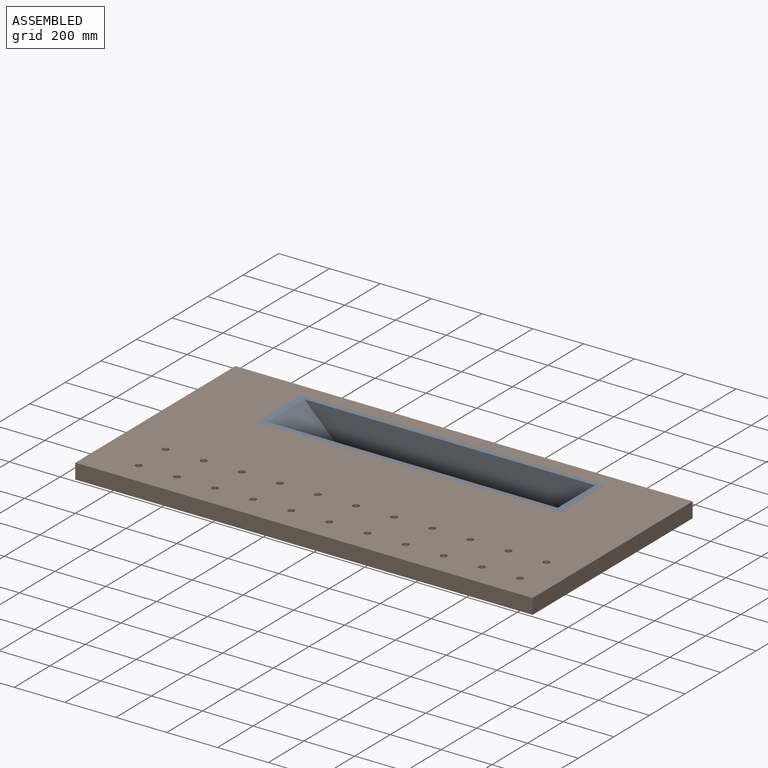
[diagram: assembled view]
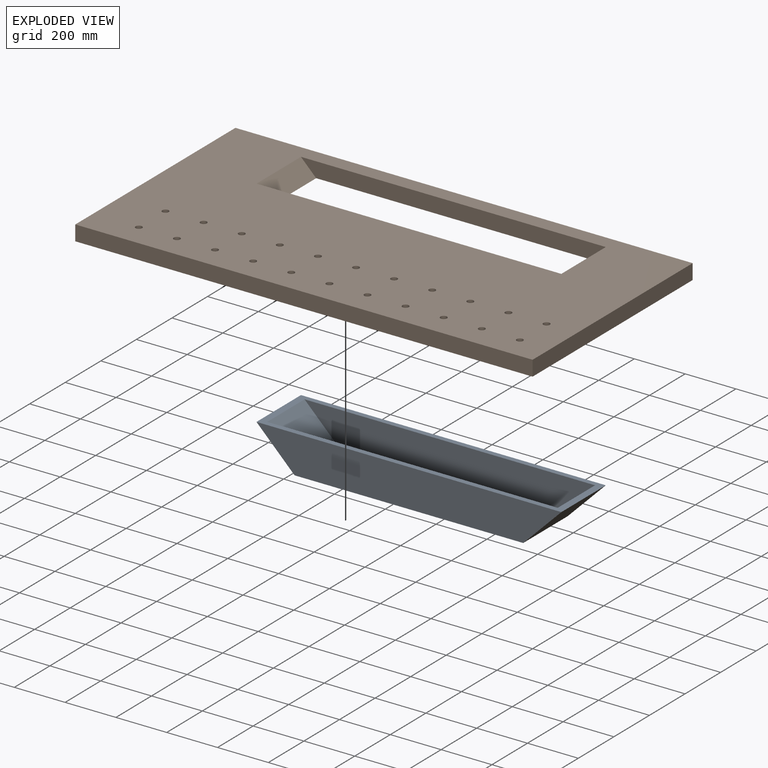
[diagram: exploded view]
GUIDED TOUR — MATED ASSEMBLY WITH SUBASSEMBLIES (Onshape document 4d3d17a468d126c193f9c319, AutoMate assembly 4d3d17a468d126c193f9c319_b5b2b6fa10c2483a81ee75f6_35c6d089d1beaa1d6626289a_default)

This assembly has 6 component occurrences arranged in 2 top-level units: 1 individual components plus 1 subassembly (S0). The tour has two levels: first the top level, where each subassembly is treated as one rigid unit; then each subassembly is toured internally in its own section (nesting deeper than one subassembly level is flattened into its subassembly's section).

Components are labeled P0..P5 across the whole record; subassembly units are labeled S0..S0. A mate is a constraint between two units; its type names the relative motion it leaves free:
  FASTENED — locks the two components together rigidly (no relative motion),
  PLANAR — leaves sliding in the plane through the listed point (normal = the listed direction) and rotation about that normal free.
Axis/direction vectors are unit vectors and 'through' points are millimeter coordinates, both in the assembly's world frame.

TOP-LEVEL MATES (between units; each subassembly's internal mates are listed in its own section)
  1. FASTENED "Fastened 6": S0 <-> P4, direction (0.000, 0.000, 1.000) through (300.00, 590.00, 60.00) mm
  2. PLANAR "Planar 1": P4 <-> S0, direction (0.000, 0.000, 1.000) through (899.74, 391.60, 60.00) mm

TOP-LEVEL ASSEMBLY ORDER
  1. S0 — the base component [order verified]
  2. P4 [order verified]
Order-tag legend:
  [order verified] — this step's position reverses a verified removal order: the component was checked to insert without passing through the ones already placed.

Of the 6 component occurrences, 2 carry the full construction recipe — the FeatureScript program that regenerates the part's solid from scratch; the rest are supplied as boundary geometry only. Each toured unit is shown spotlighted twice — assembled, then exploded with a leader line back to its socket (green = recipe-attached component, orange = geometry-only, blue = subassembly unit; the rest desaturated gray).
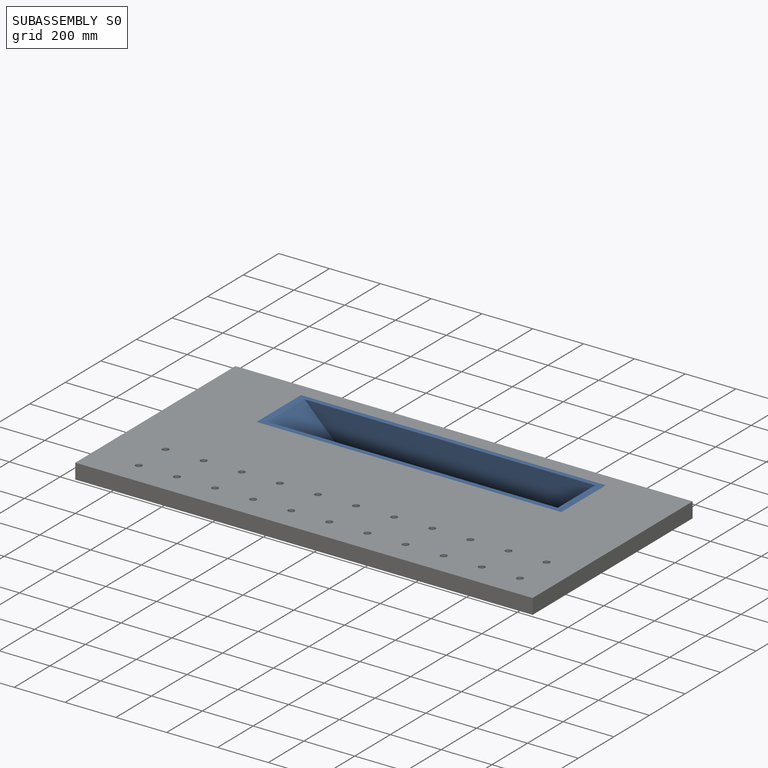
[diagram: subassembly S0 — assembled]
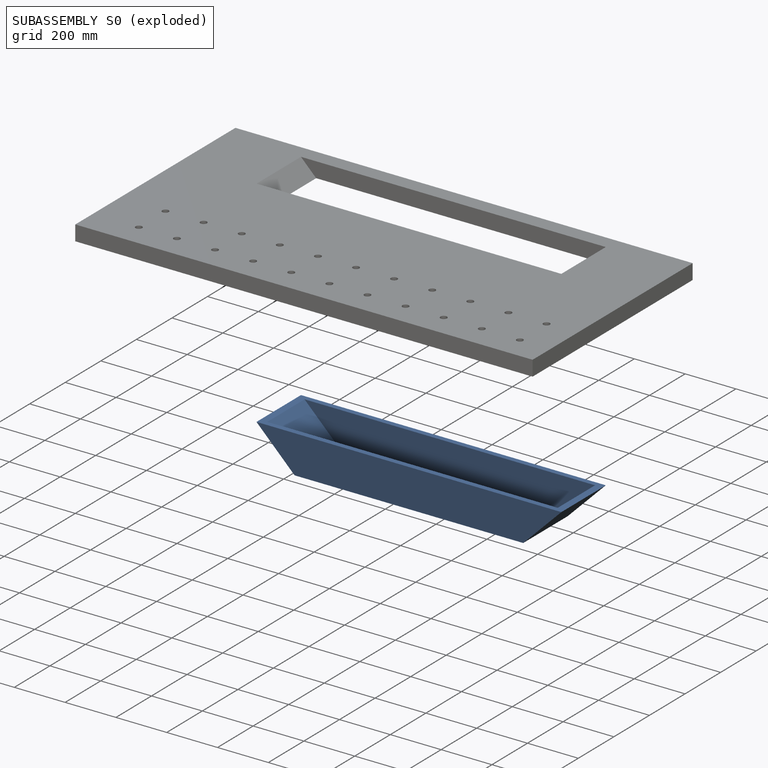
[diagram: subassembly S0 — exploded]
SUBASSEMBLY S0 — 5 components (P0, P1, P2, P3, P5), of which 2 recipe-attached; toured below.
Held by: FASTENED mate "Fastened 6" to P4; PLANAR mate "Planar 1" to P4.
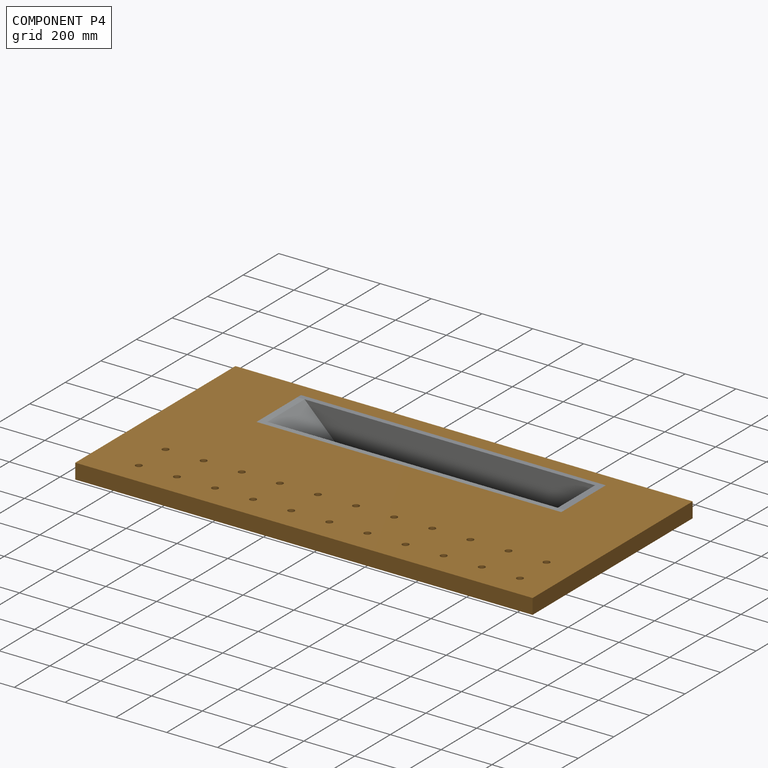
[diagram: component P4 — assembled]
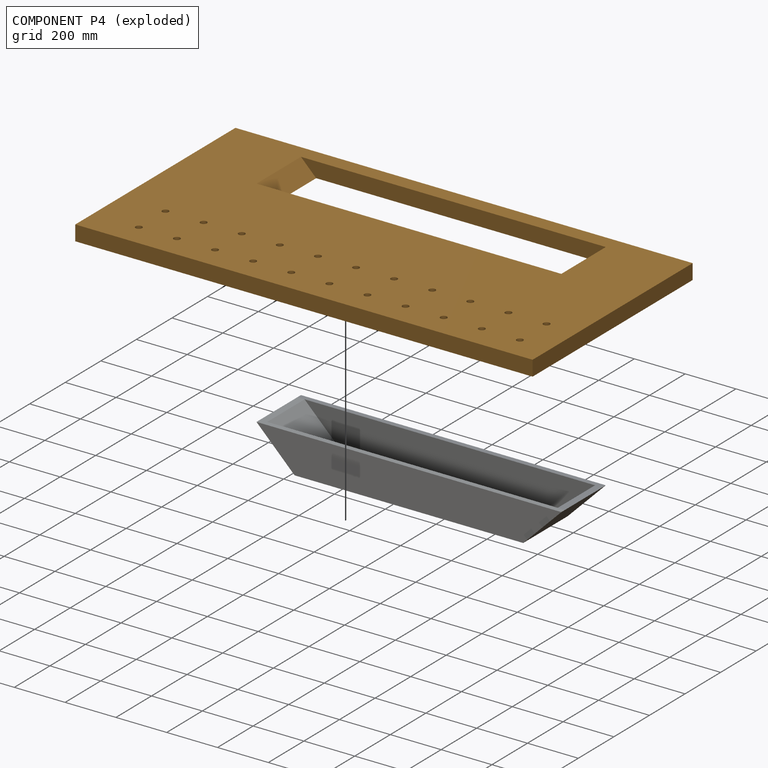
[diagram: component P4 — exploded]
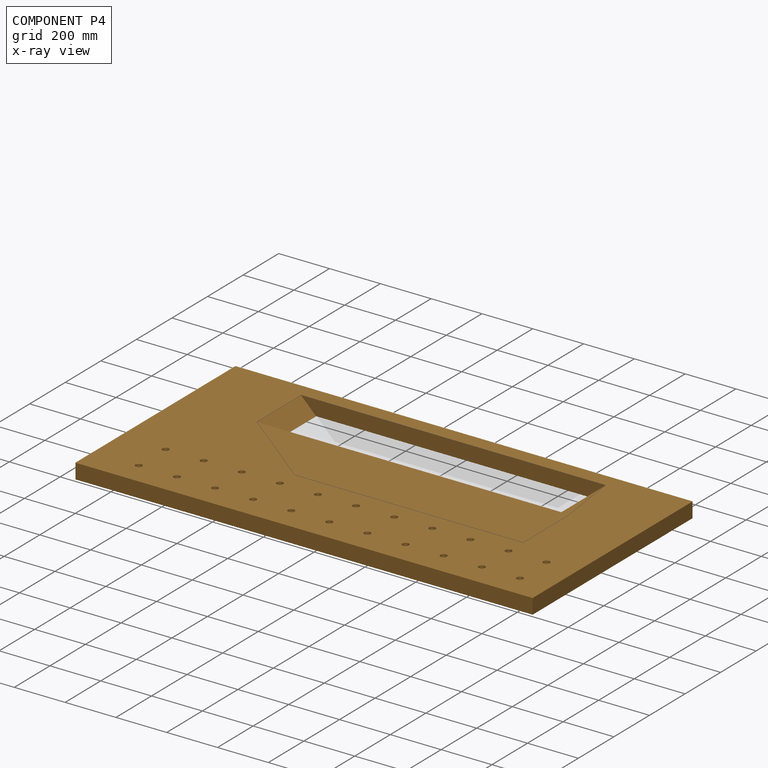
[diagram: component P4 — x-ray view]
COMPONENT P4 — geometry summary (no construction recipe available for this part):
  bounding box: 1800.0 x 900.0 x 60.0 mm
  B-rep topology: 1 solid, 52 faces, 276 edges
  volume: 79071146 mm^3 (81% of its bounding box)
Held by: FASTENED mate "Fastened 6" to P0; PLANAR mate "Planar 1" to P0.
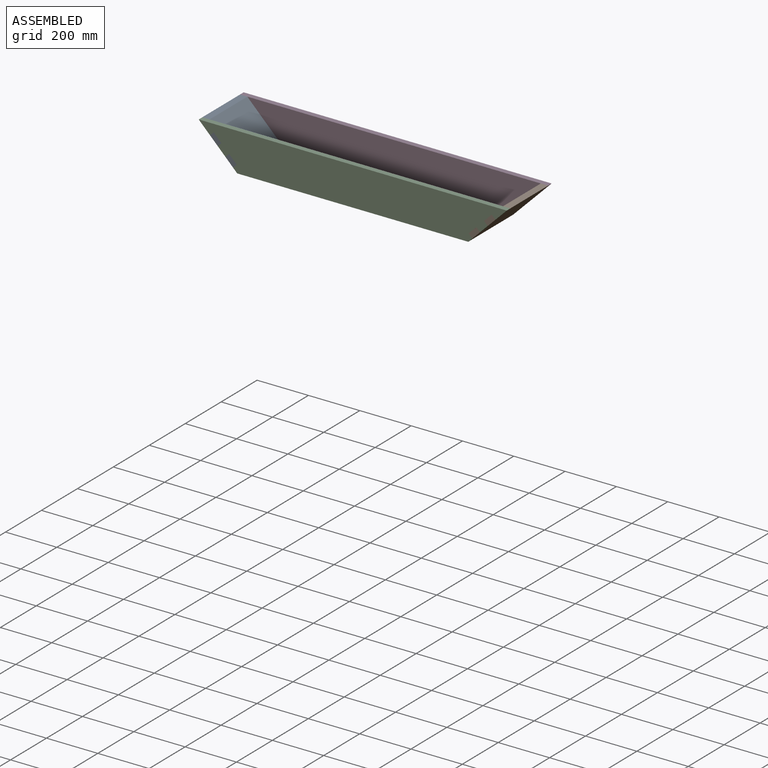
[diagram: subassembly S0 — assembled view]
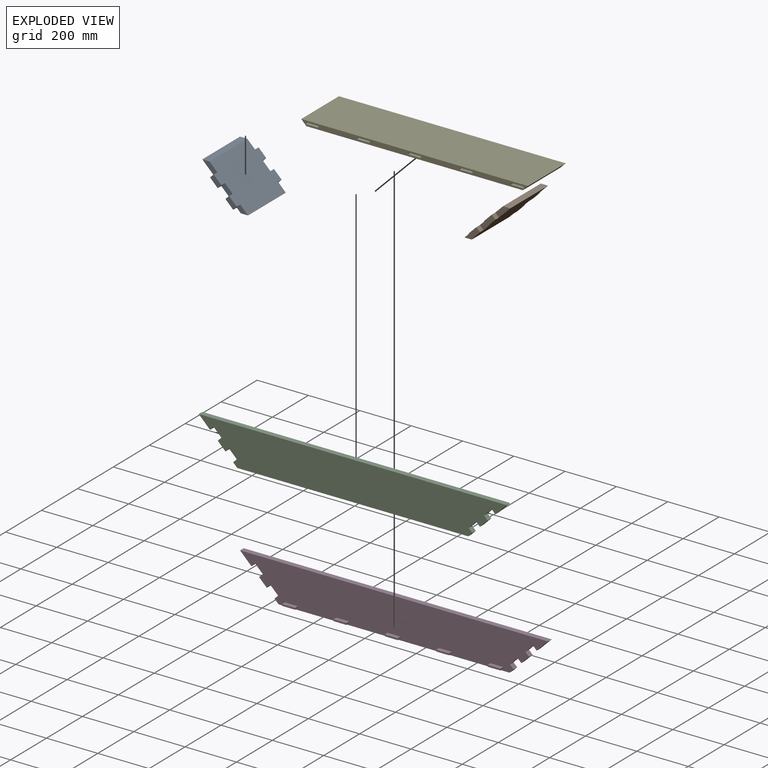
[diagram: subassembly S0 — exploded view]
SUBASSEMBLY S0 TOUR — 5 components, shown here in isolation at its own camera.

INTERNAL MATES
  1. FASTENED "Fastened 3": P0 <-> P2, direction (0.000, 0.000, 1.000) through (300.00, 610.00, 60.00) mm
  2. FASTENED "Fastened 2": P3 <-> P0, direction (0.000, 0.000, 1.000) through (300.00, 820.00, 60.00) mm
  3. FASTENED "Fastened 5": P0 <-> P5, direction (0.707, 0.000, 0.707) through (478.28, 820.00, -90.00) mm
  4. FASTENED "Fastened 4": P3 <-> P1, direction (0.000, 0.000, 1.000) through (1500.00, 820.00, 60.00) mm
  5. FASTENED "Fastened 3": P0 <-> P2, direction (0.000, 0.000, 1.000) through (300.00, 610.00, 60.00) mm
  6. FASTENED "Fastened 2": P3 <-> P0, direction (0.000, 0.000, 1.000) through (300.00, 820.00, 60.00) mm
  7. FASTENED "Fastened 5": P0 <-> P5, direction (0.707, 0.000, 0.707) through (478.28, 820.00, -90.00) mm
  8. FASTENED "Fastened 4": P3 <-> P1, direction (0.000, 0.000, 1.000) through (1500.00, 820.00, 60.00) mm

ASSEMBLY ORDER (within the subassembly)
  1. P1 — the base component [order verified]
  2. P0 [order verified]
  3. P3 [order verified]
  4. P5 [order verified]
  5. P2 [order verified]
(P5 verified with a relaxed clearance tolerance: the source model stores slight part interference there.)
Order-tag legend:
  [order verified] — this step's position reverses a verified removal order: the component was checked to insert without passing through the ones already placed.
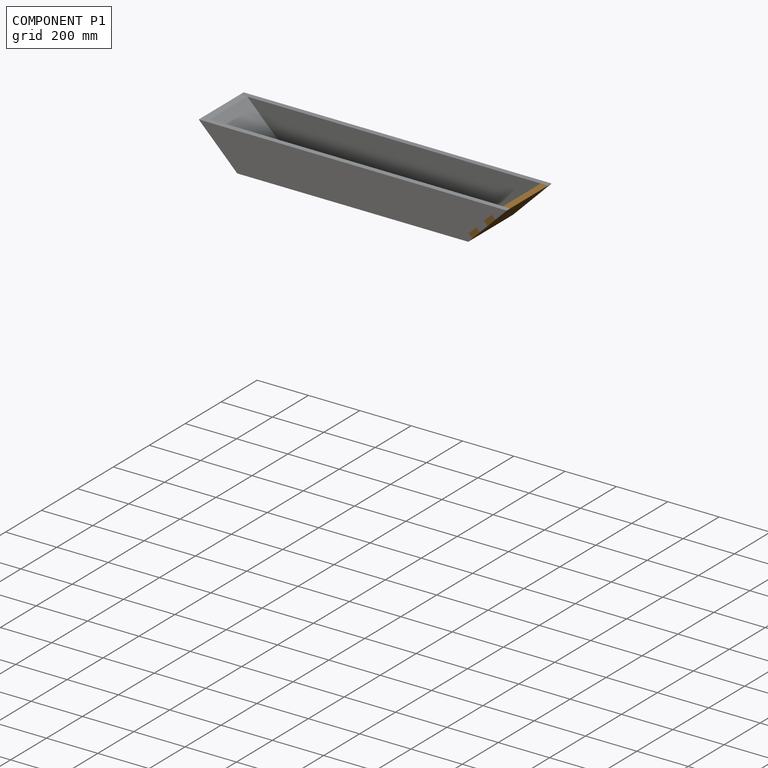
[diagram: component P1 — assembled]
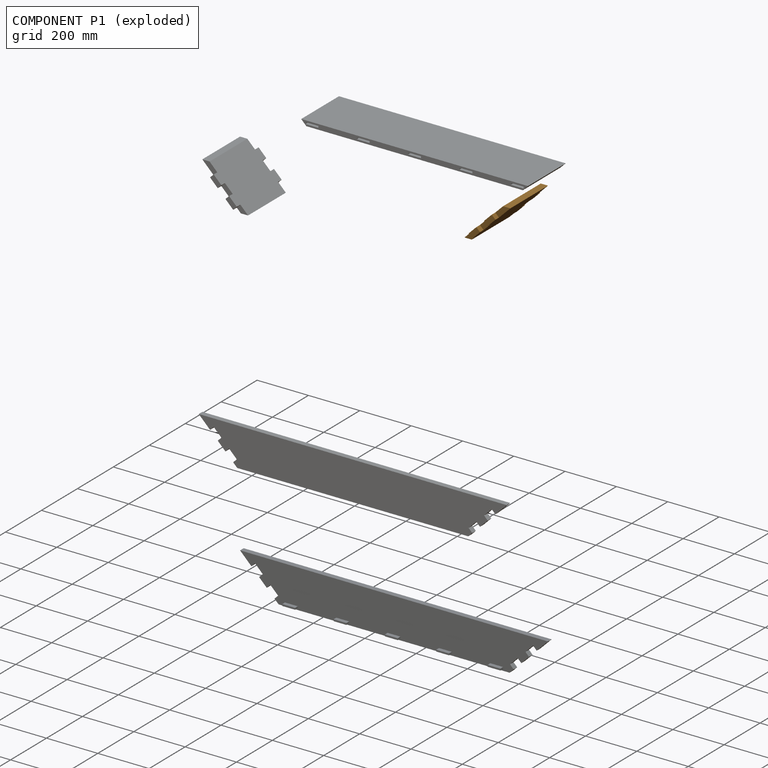
[diagram: component P1 — exploded]
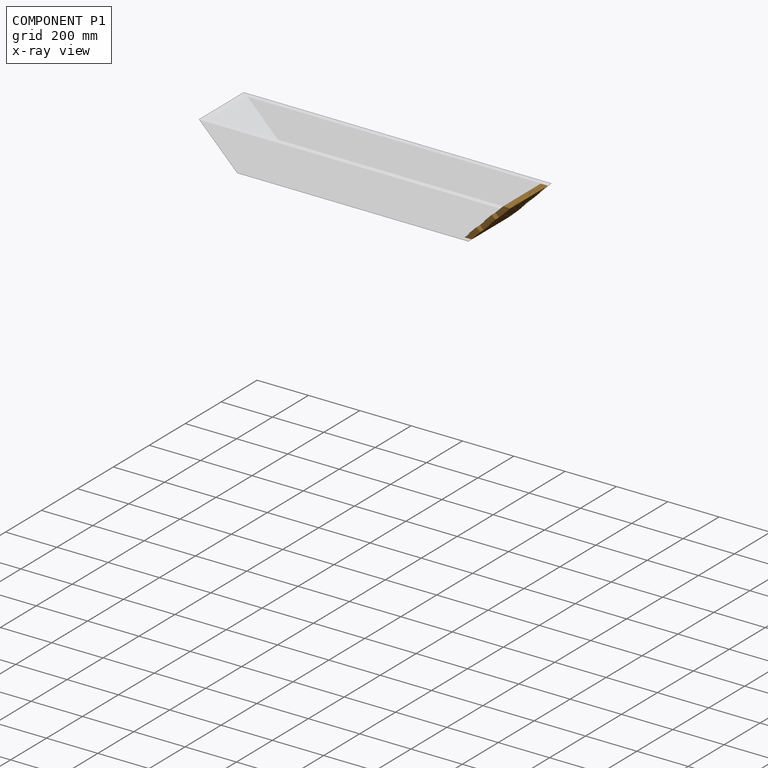
[diagram: component P1 — x-ray view]
COMPONENT P1 — geometry summary (no construction recipe available for this part):
  bounding box: 250.0 x 232.1 x 20.0 mm
  B-rep topology: 1 solid, 22 faces, 120 edges
  volume: 958837 mm^3 (83% of its bounding box)
  symmetry: mirror-symmetric across its y mid-plane
Held by: FASTENED mate "Fastened 4" to P3; FASTENED mate "Fastened 4" to P3.
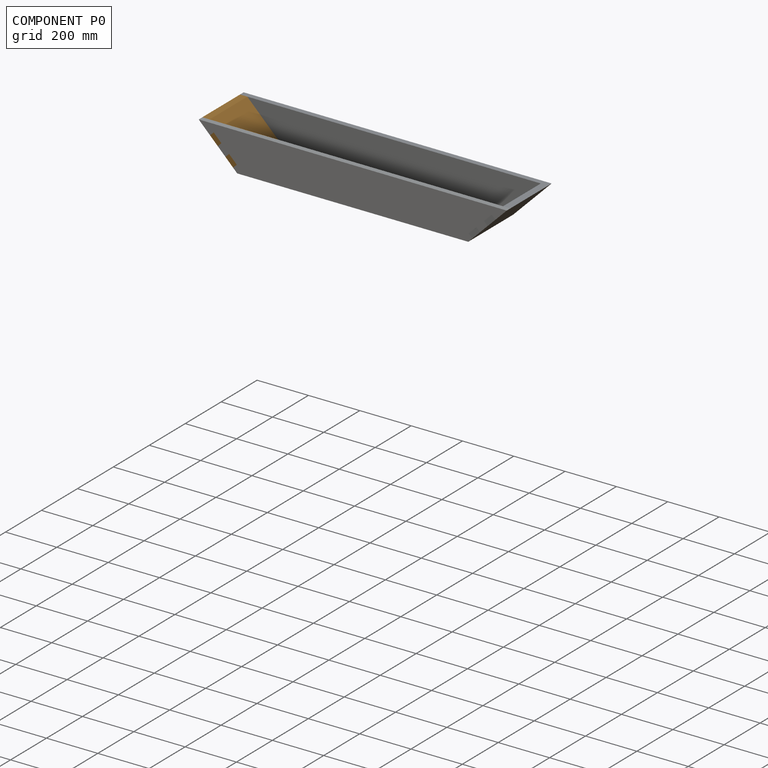
[diagram: component P0 — assembled]
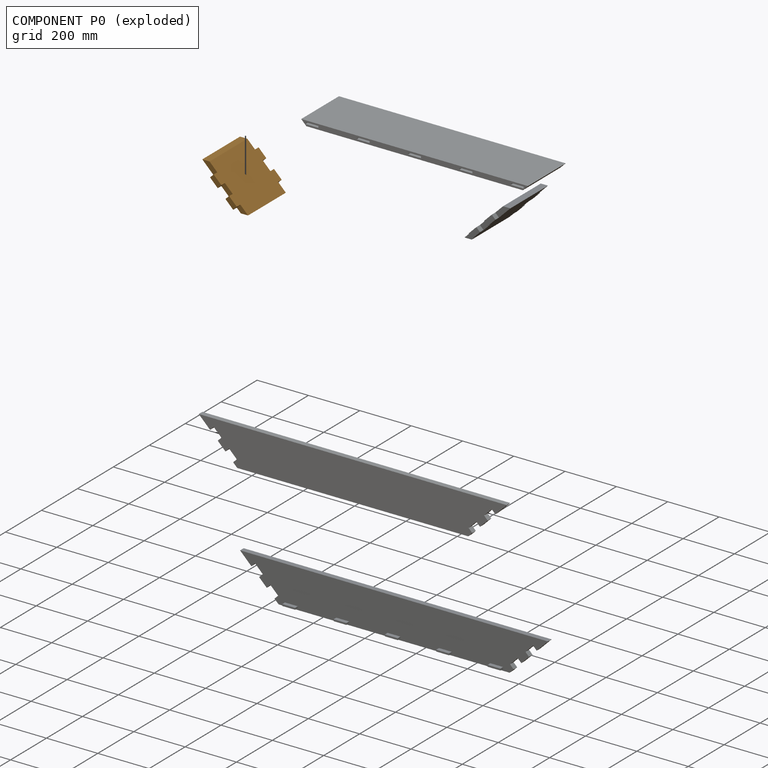
[diagram: component P0 — exploded]
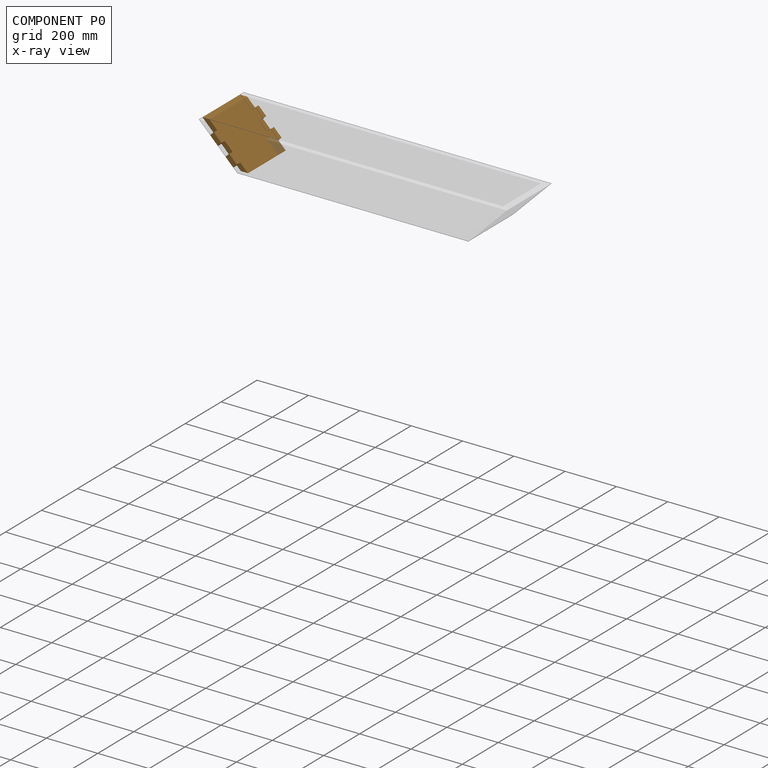
[diagram: component P0 — x-ray view]
COMPONENT P0 — geometry summary (no construction recipe available for this part):
  bounding box: 250.0 x 232.1 x 20.0 mm
  B-rep topology: 1 solid, 22 faces, 120 edges
  volume: 958837 mm^3 (83% of its bounding box)
  symmetry: mirror-symmetric across its y mid-plane
Held by: FASTENED mate "Fastened 3" to P2; FASTENED mate "Fastened 2" to P3; FASTENED mate "Fastened 5" to P5; FASTENED mate "Fastened 3" to P2; FASTENED mate "Fastened 2" to P3; FASTENED mate "Fastened 5" to P5.
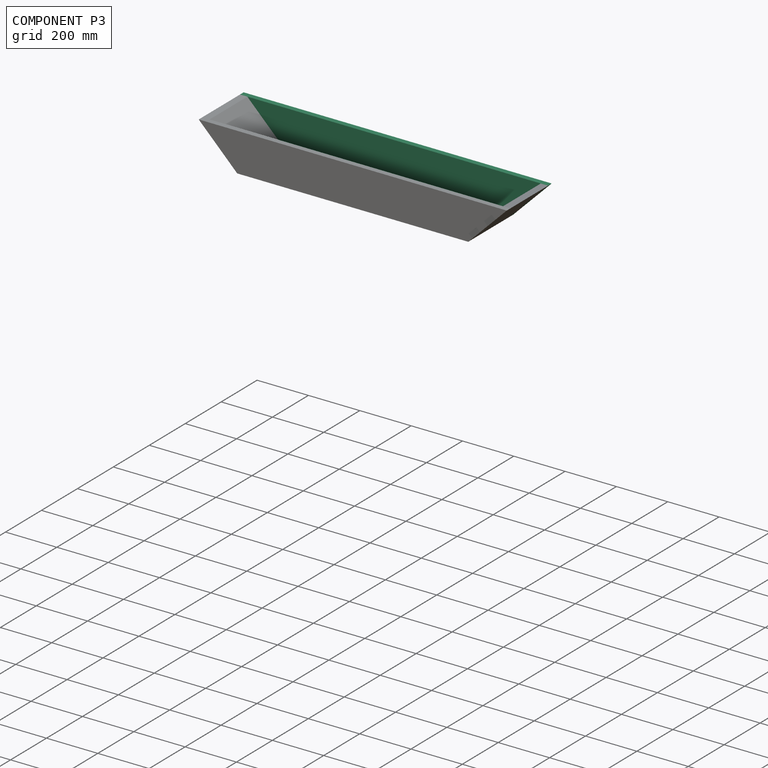
[diagram: component P3 — assembled]
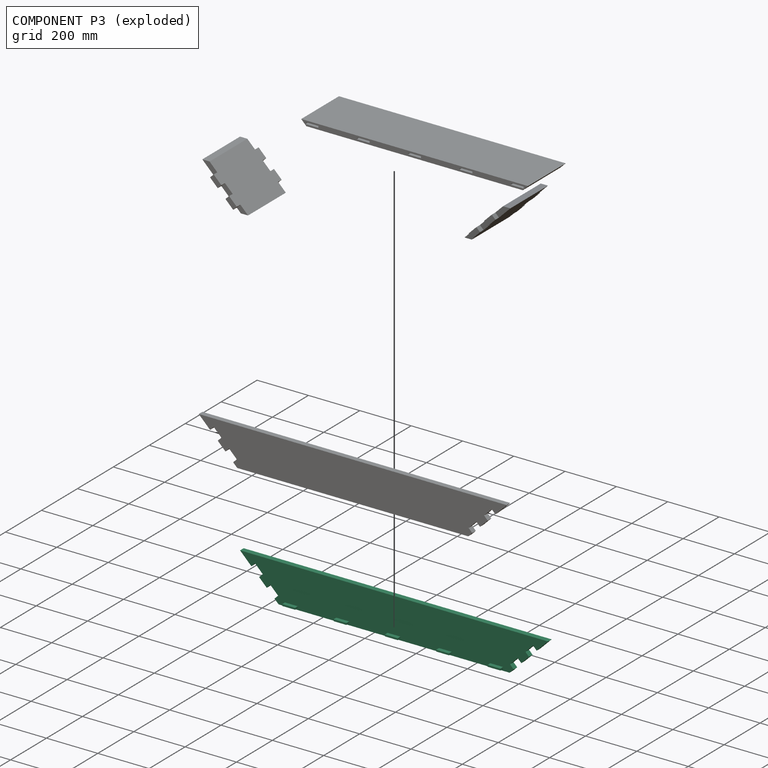
[diagram: component P3 — exploded]
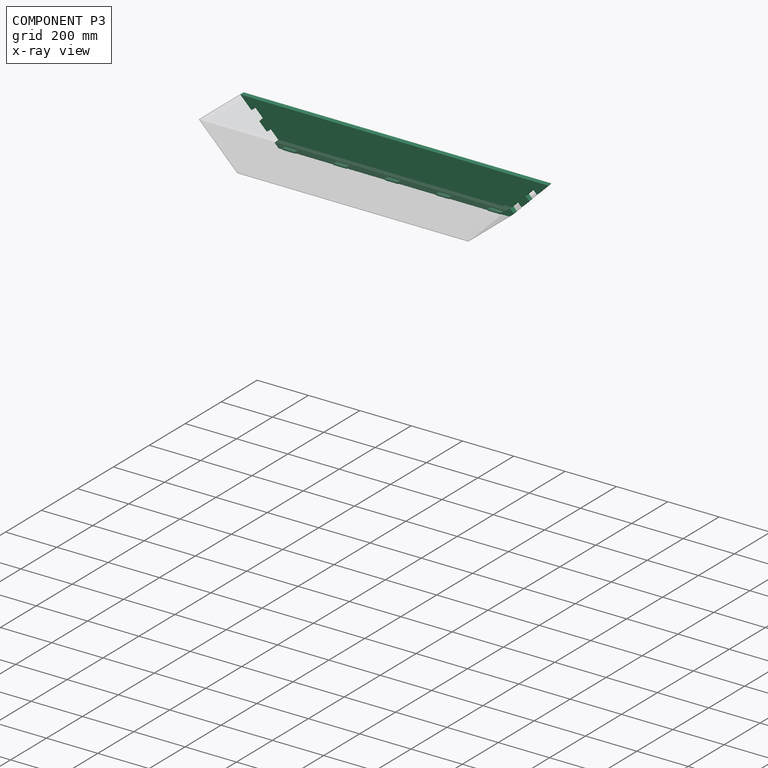
[diagram: component P3 — x-ray view]
COMPONENT P3 — same part as P2 (CADFS 00162149); its construction recipe is shown at P2.
Held by: FASTENED mate "Fastened 2" to P0; FASTENED mate "Fastened 4" to P1; FASTENED mate "Fastened 2" to P0; FASTENED mate "Fastened 4" to P1.
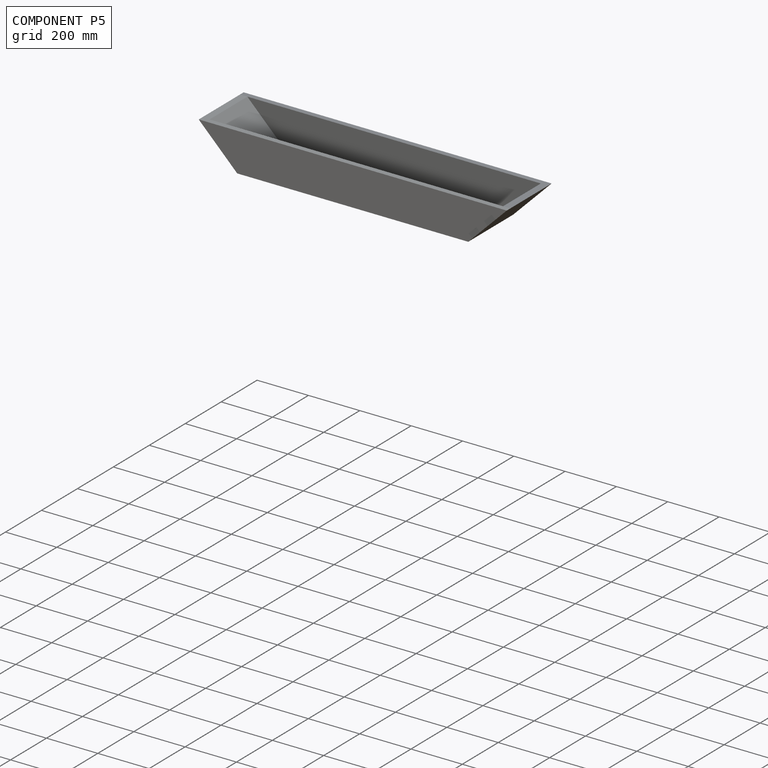
[diagram: component P5 — assembled]
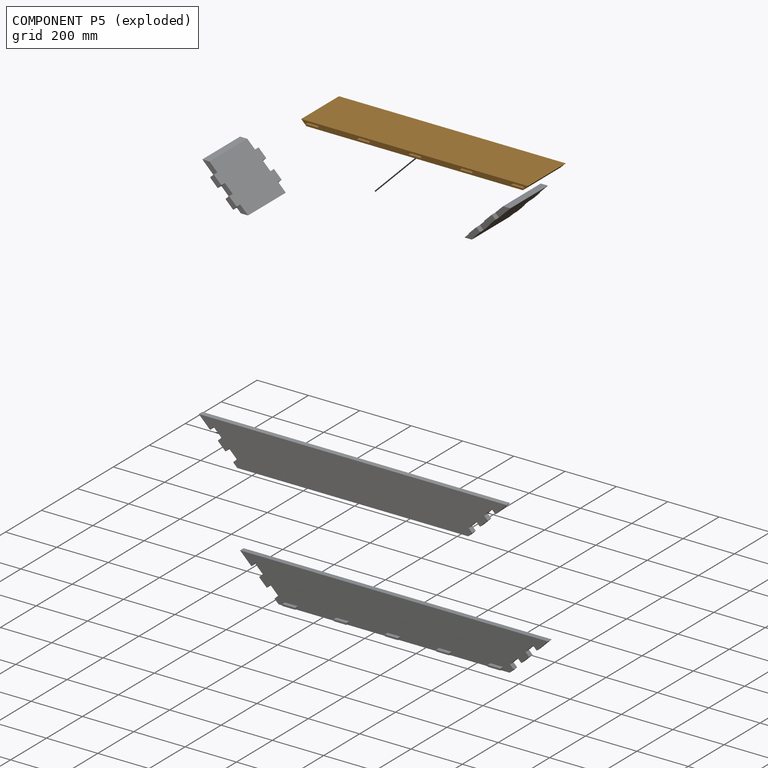
[diagram: component P5 — exploded]
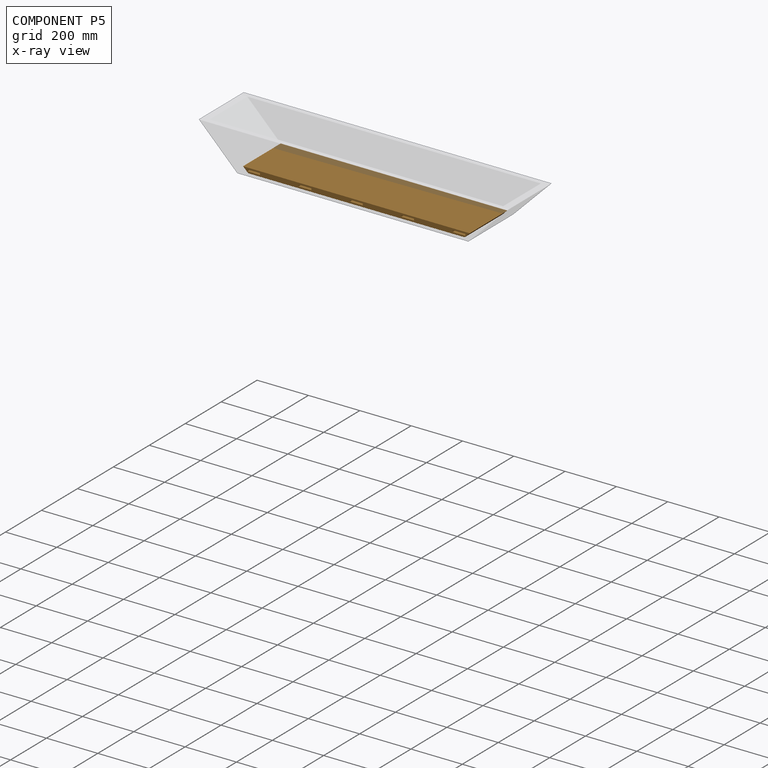
[diagram: component P5 — x-ray view]
COMPONENT P5 — geometry summary (no construction recipe available for this part):
  bounding box: 883.4 x 210.0 x 20.0 mm
  B-rep topology: 1 solid, 56 faces, 264 edges
  volume: 3576410 mm^3 (96% of its bounding box)
  symmetry: 2-fold rotationally symmetric about the z axis; mirror-symmetric across its x mid-plane, y mid-plane
Held by: FASTENED mate "Fastened 5" to P0; FASTENED mate "Fastened 5" to P0.
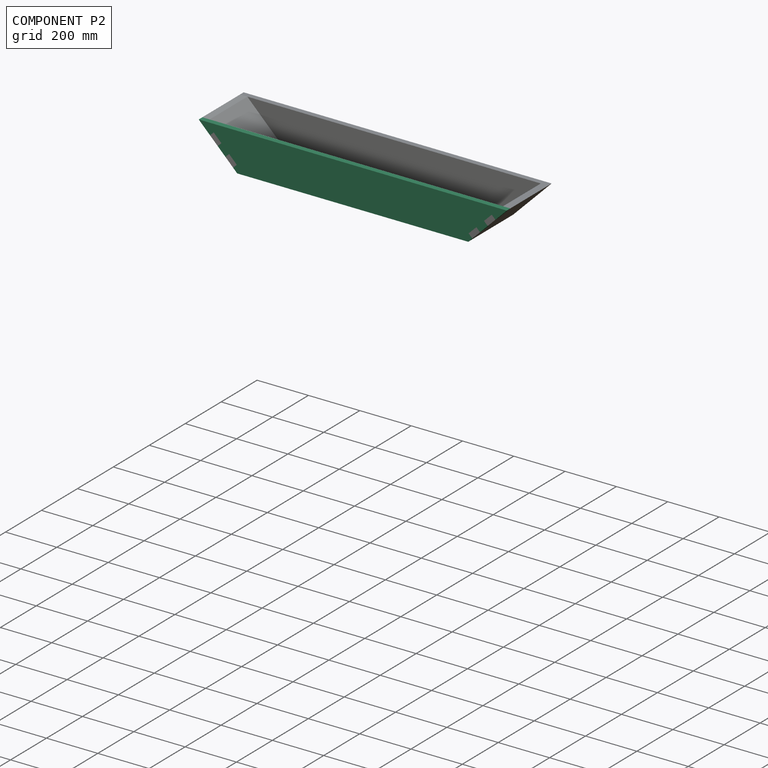
[diagram: component P2 — assembled]
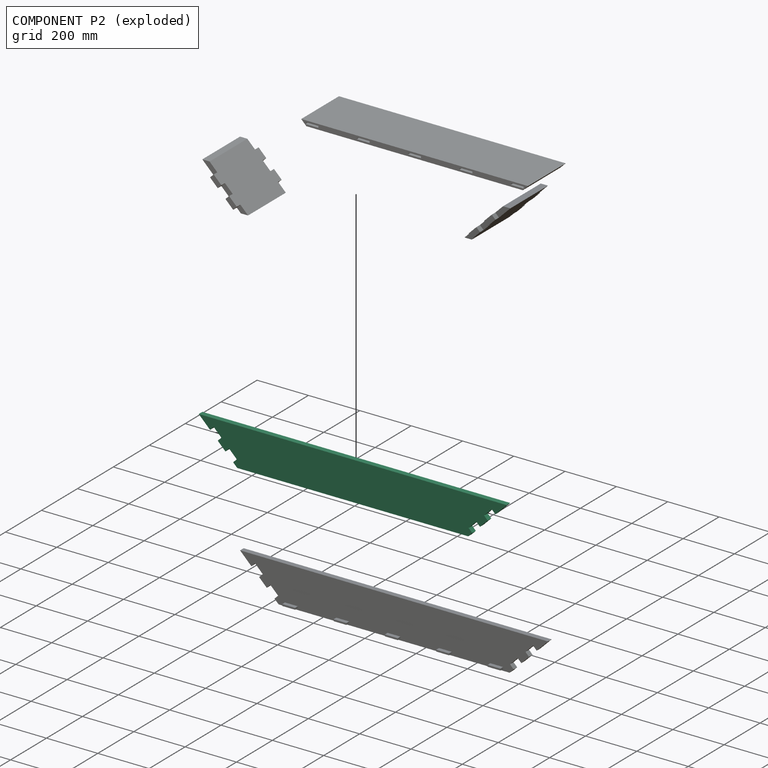
[diagram: component P2 — exploded]
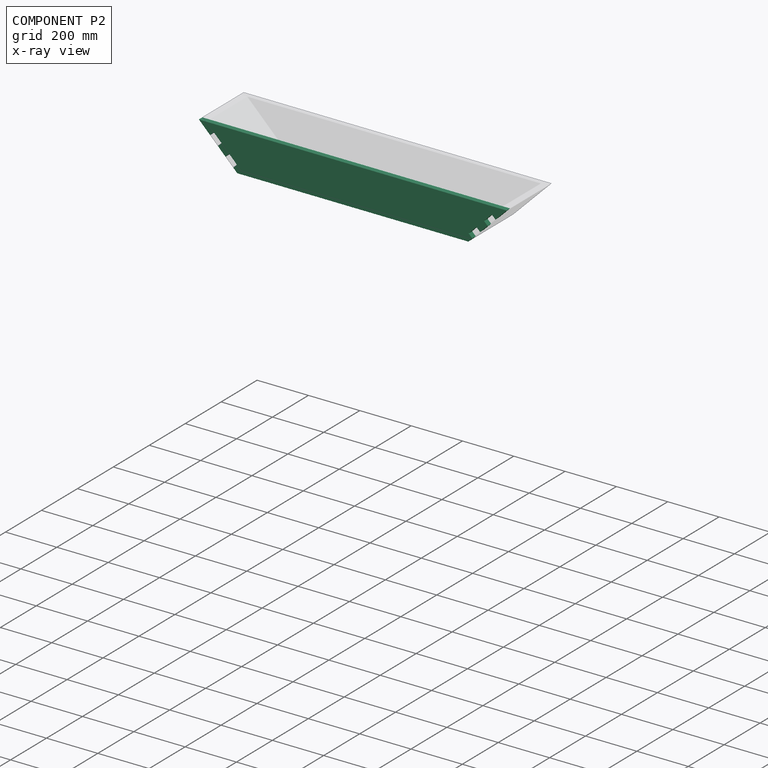
[diagram: component P2 — x-ray view]
COMPONENT P2 — recipe-attached (CADFS 00162149, mesh-verified: the recipe's output STEP matches this component's geometry to below the mesh-comparison resolution (tessellation chordal tolerance ~1.81 mm)).
Held by: FASTENED mate "Fastened 3" to P0; FASTENED mate "Fastened 3" to P0.
Construction recipe (FeatureScript — the CAD program that rebuilds this solid; sketch coordinates are in the units given by the * unit suffixes, e.g. mm):

FeatureScript 1511;
import(path : "onshape/std/geometry.fs", version : "1511.0");
import(path : "onshape/std/common.fs", version : "1511.0");
const mm = millimeter;
const VERTEX = EntityType.VERTEX;
const EDGE = EntityType.EDGE;
const FACE = EntityType.FACE;
const BODY = EntityType.BODY;
function v(x, y){return vector(x, y);}
function OD(order){return orderDisambiguation(order);}
function OSD(set){return originalSetDisambiguation(set);}
function TD(topology){return topologyDisambiguation(topology);}
function TDD(query){return trueDependencyDisambiguation(query);}
function sQuery(a, b, c) {return sketchEntityQuery(a, b, c);}

annotation { "Feature Type Name" : "Feature", "Feature Type Description" : "" }
export const myFeature = defineFeature(function(context is Context, id is Id, definition is map)
    precondition{}
    {
        {
            assignVariable(context, id + "F0", {"name" : "t", "anyValue" : 20 * mm});
        }
        {
            var Q0;
            Q0=qCreatedBy(makeId("Front.planeOp"),FACE);
            var sketch = newSketch(context, id + "F1", { "sketchPlane" : qUnion([Q0])});
            skLineSegment(sketch, "E0.bottom", {"start": v(600, 75) * mm, "end": v(-600, 75) * mm});
            skLineSegment(sketch, "E0.top", {"start": v(600, -75) * mm, "end": v(-600, -75) * mm});
            skLineSegment(sketch, "E0.left", {"start": v(600, 75) * mm, "end": v(600, -75) * mm});
            skLineSegment(sketch, "E0.right", {"start": v(-600, 75) * mm, "end": v(-600, -75) * mm});
            skPoint(sketch, "E0.middle", {"position": v(0, 0) * mm});
            skLineSegment(sketch, "E1", {"start": v(-600, 75) * mm, "end": v(-450, -75) * mm});
            skLineSegment(sketch, "E2.MirrorCS", {"start": v(600, 75) * mm, "end": v(450, -75) * mm});
            skSolve(sketch);
        }
        {
            var Q0;
            {var subQ1=sQuery(id+"F1.wireOp",EDGE,"E0.bottom");Q0=makeQuery(id+"F1.imprint","IMPRINT",FACE,{"disambiguationData":[TD([[makeQuery(id+"F1.imprint","IMPRINT",EDGE,{"derivedFrom":subQ1}),1.0]])]});}
            extrude(context, id + "F2", {"entities" : qUnion([Q0]), "endBound" : BoundingType.SYMMETRIC, "depth" : getVariable(context, 't')});
        }
        {
            var Q0;
            Q0=qCreatedBy(makeId("Front.planeOp"),FACE);
            var sketch = newSketch(context, id + "F3", { "sketchPlane" : qUnion([Q0])});
            skLineSegment(sketch, "E3.bottom", {"start": v(-555.86, 30.86) * mm, "end": v(-541.72, 45) * mm});
            skLineSegment(sketch, "E3.top", {"start": v(-525.86, 0.86) * mm, "end": v(-511.72, 15) * mm});
            skLineSegment(sketch, "E3.left", {"start": v(-555.86, 30.86) * mm, "end": v(-525.86, 0.86) * mm});
            skLineSegment(sketch, "E3.right", {"start": v(-541.72, 45) * mm, "end": v(-511.72, 15) * mm});
            skLineSegment(sketch, "E4", {"start": v(-541.72, 45) * mm, "end": v(-571.72, 75) * mm, "construction": true});
            skLineSegment(sketch, "E5", {"start": v(-511.72, 15) * mm, "end": v(-481.72, -15) * mm, "construction": true});
            skLineSegment(sketch, "E6.bottom", {"start": v(-481.72, -15) * mm, "end": v(-495.86, -29.14) * mm});
            skLineSegment(sketch, "E6.top", {"start": v(-451.72, -45) * mm, "end": v(-465.86, -59.14) * mm});
            skLineSegment(sketch, "E6.left", {"start": v(-481.72, -15) * mm, "end": v(-451.72, -45) * mm});
            skLineSegment(sketch, "E6.right", {"start": v(-495.86, -29.14) * mm, "end": v(-465.86, -59.14) * mm});
            skLineSegment(sketch, "E7.MirrorCS", {"start": v(555.86, 30.86) * mm, "end": v(541.72, 45) * mm});
            skLineSegment(sketch, "E8.MirrorCS", {"start": v(541.72, 45) * mm, "end": v(511.72, 15) * mm});
            skLineSegment(sketch, "E9.MirrorCS", {"start": v(555.86, 30.86) * mm, "end": v(525.86, 0.86) * mm});
            skLineSegment(sketch, "E10.MirrorCS", {"start": v(525.86, 0.86) * mm, "end": v(511.72, 15) * mm});
            skLineSegment(sketch, "E11.MirrorCS", {"start": v(481.72, -15) * mm, "end": v(495.86, -29.14) * mm});
            skLineSegment(sketch, "E12.MirrorCS", {"start": v(481.72, -15) * mm, "end": v(451.72, -45) * mm});
            skLineSegment(sketch, "E13.MirrorCS", {"start": v(451.72, -45) * mm, "end": v(465.86, -59.14) * mm});
            skLineSegment(sketch, "E14.MirrorCS", {"start": v(495.86, -29.14) * mm, "end": v(465.86, -59.14) * mm});
            skLineSegment(sketch, "E15", {"start": v(-451.72, -45) * mm, "end": v(-421.72, -75) * mm, "construction": true});
            skLineSegment(sketch, "E16", {"start": v(-571.72, 75) * mm, "end": v(-585.86, 60.86) * mm, "construction": true});
            skLineSegment(sketch, "E17", {"start": v(-421.72, -75) * mm, "end": v(-435.86, -89.14) * mm, "construction": true});
            skSolve(sketch);
        }
        {
            var Q0;
            Q0 = qSketchRegion(id + "F3", true);
            extrude(context, id + "F4", {"entities" : qUnion([Q0]), "operationType" : NewBodyOperationType.REMOVE, "endBound" : BoundingType.SYMMETRIC, "oppositeDirection" : true, "depth" : getVariable(context, 't')});
        }
        {
            var Q0;
            Q0=makeQuery(id+"F2.opExtrude","CAP_FACE",FACE,{"disambiguationData":[OSD([sQuery(id+"F1.wireOp",EDGE,"E0.bottom"),sQuery(id+"F1.wireOp",EDGE,"E0.top"),sQuery(id+"F1.wireOp",EDGE,"E0.left"),sQuery(id+"F1.wireOp",EDGE,"E0.right"),sQuery(id+"F1.wireOp",EDGE,"E1"),sQuery(id+"F1.wireOp",EDGE,"E2.MirrorCS")])],"isStart":false});
            var sketch = newSketch(context, id + "F5", { "sketchPlane" : qUnion([Q0])});
            skLineSegment(sketch, "E18.bottom", {"start": v(25, -61.67) * mm, "end": v(-25, -61.67) * mm});
            skLineSegment(sketch, "E18.top", {"start": v(25, -68.33) * mm, "end": v(-25, -68.33) * mm});
            skLineSegment(sketch, "E18.left", {"start": v(25, -61.67) * mm, "end": v(25, -68.33) * mm});
            skLineSegment(sketch, "E18.right", {"start": v(-25, -61.67) * mm, "end": v(-25, -68.33) * mm});
            skPoint(sketch, "E18.middle", {"position": v(0, -65) * mm});
            skLineSegment(sketch, "E19.1.0.0", {"start": v(225, -61.67) * mm, "end": v(175, -61.67) * mm});
            skLineSegment(sketch, "E19.1.0.1", {"start": v(225, -61.67) * mm, "end": v(225, -68.33) * mm});
            skLineSegment(sketch, "E19.1.0.2", {"start": v(225, -68.33) * mm, "end": v(175, -68.33) * mm});
            skLineSegment(sketch, "E19.1.0.3", {"start": v(175, -61.67) * mm, "end": v(175, -68.33) * mm});
            skLineSegment(sketch, "E19.2.0.0", {"start": v(425, -61.67) * mm, "end": v(375, -61.67) * mm});
            skLineSegment(sketch, "E19.2.0.1", {"start": v(425, -61.67) * mm, "end": v(425, -68.33) * mm});
            skLineSegment(sketch, "E19.2.0.2", {"start": v(425, -68.33) * mm, "end": v(375, -68.33) * mm});
            skLineSegment(sketch, "E19.2.0.3", {"start": v(375, -61.67) * mm, "end": v(375, -68.33) * mm});
            skLineSegment(sketch, "E19.direction1", {"start": v(-25, -61.67) * mm, "end": v(175, -61.67) * mm, "construction": true});
            skLineSegment(sketch, "E20.MirrorCS", {"start": v(-175, -61.67) * mm, "end": v(-175, -68.33) * mm});
            skLineSegment(sketch, "E21.MirrorCS", {"start": v(-225, -61.67) * mm, "end": v(-175, -61.67) * mm});
            skLineSegment(sketch, "E22.MirrorCS", {"start": v(-225, -68.33) * mm, "end": v(-175, -68.33) * mm});
            skLineSegment(sketch, "E23.MirrorCS", {"start": v(-225, -61.67) * mm, "end": v(-225, -68.33) * mm});
            skLineSegment(sketch, "E24.MirrorCS", {"start": v(-425, -61.67) * mm, "end": v(-425, -68.33) * mm});
            skLineSegment(sketch, "E25.MirrorCS", {"start": v(-375, -61.67) * mm, "end": v(-375, -68.33) * mm});
            skLineSegment(sketch, "E26.MirrorCS", {"start": v(-425, -61.67) * mm, "end": v(-375, -61.67) * mm});
            skLineSegment(sketch, "E27.MirrorCS", {"start": v(-425, -68.33) * mm, "end": v(-375, -68.33) * mm});
            skLineSegment(sketch, "E28", {"start": v(0, -68.33) * mm, "end": v(0, -75) * mm, "construction": true});
            skSolve(sketch);
        }
        {
            var Q0;
            Q0 = qSketchRegion(id + "F5", true);
            extrude(context, id + "F6", {"entities" : qUnion([Q0]), "operationType" : NewBodyOperationType.ADD, "depth" : getVariable(context, 't') / 2 + 5 * mm});
        }
    });
PROVENANCE & LICENSES
Assembly (occurrences, transforms, mates, per-part STEP geometry): AutoMate dataset, Zenodo record 7776208, CC0.
Construction recipes: CADFS (HuggingFace VladPyatov/CADFS, CC-BY-4.0, layered over the ABC dataset), FeatureScript reconstruction programs keyed by ABC model id.
Join: ABC meta listings map ABC model id -> Onshape documentId; within a shared document, parts are matched by geometric signature (bounding-box dims + volume at 0.1% relative tolerance, exact B-rep face/solid counts).
Verification: 2 of this assembly's 6 components carry a recipe attachment, and every attachment is mesh-verified: the CADFS STEP and the AutoMate member STEP were compared as meshes in their shared local frame (symmetric sampled-point-to-mesh distance); worst across the 2 attachments: below the mesh-comparison resolution (tessellation chordal tolerance ~1.81 mm) on a 1210 mm part.
Renders: orthographic iso camera (az 35 / el 25); the floor grid conveys scale (grid pitch printed in each image; no ruler). In the exploded view each component is displaced by its stored offset vector: the offsets alone carry the explosion direction (mate normal/axis signs are not orientation cues and do not encode it), and separation distances are assigned per mate-chain, not proportionally to assembly-order depth.
